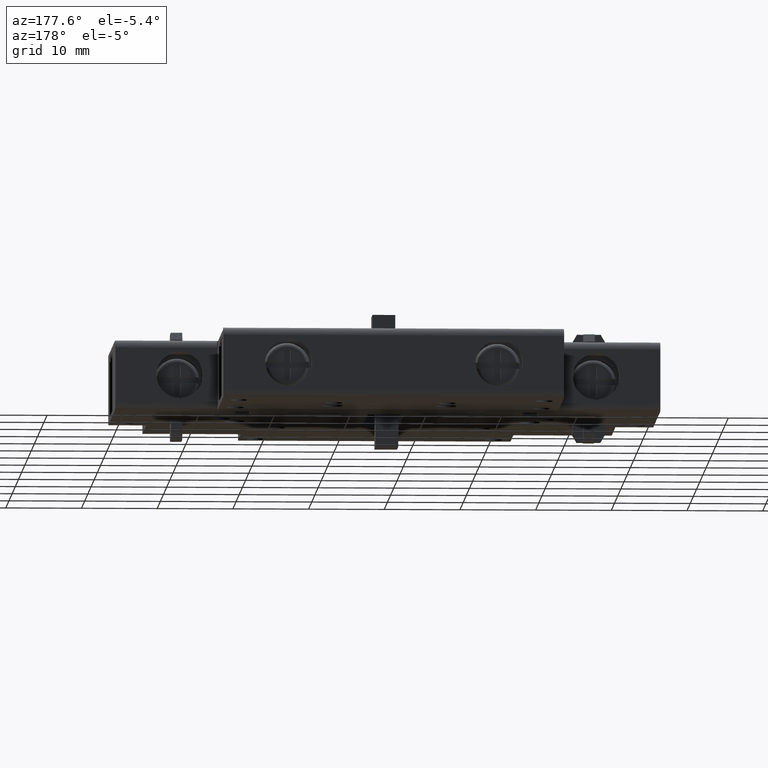
[diagram: clean part render]
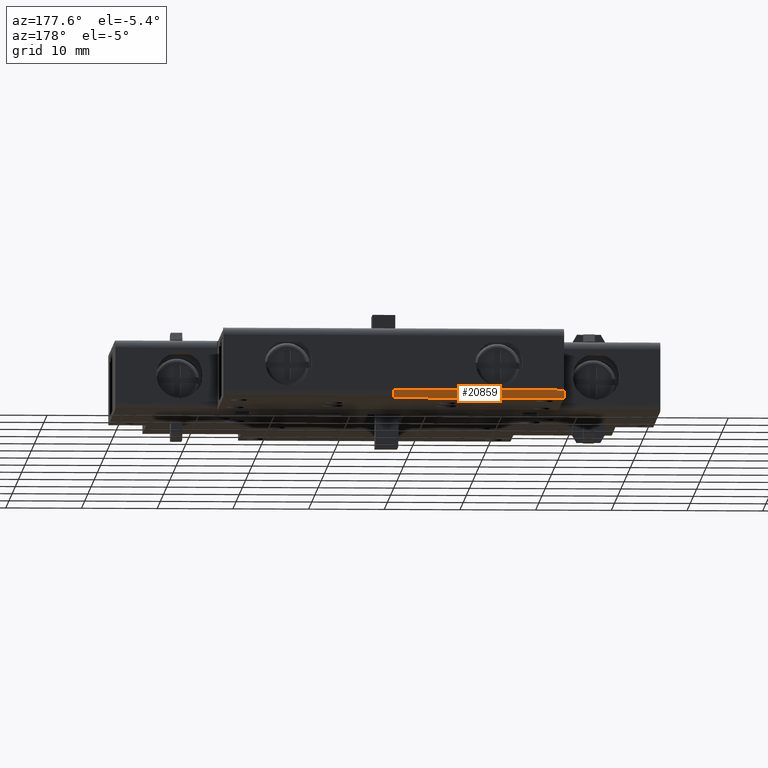
[diagram: same view with one face highlighted and labeled with its STEP entity id]
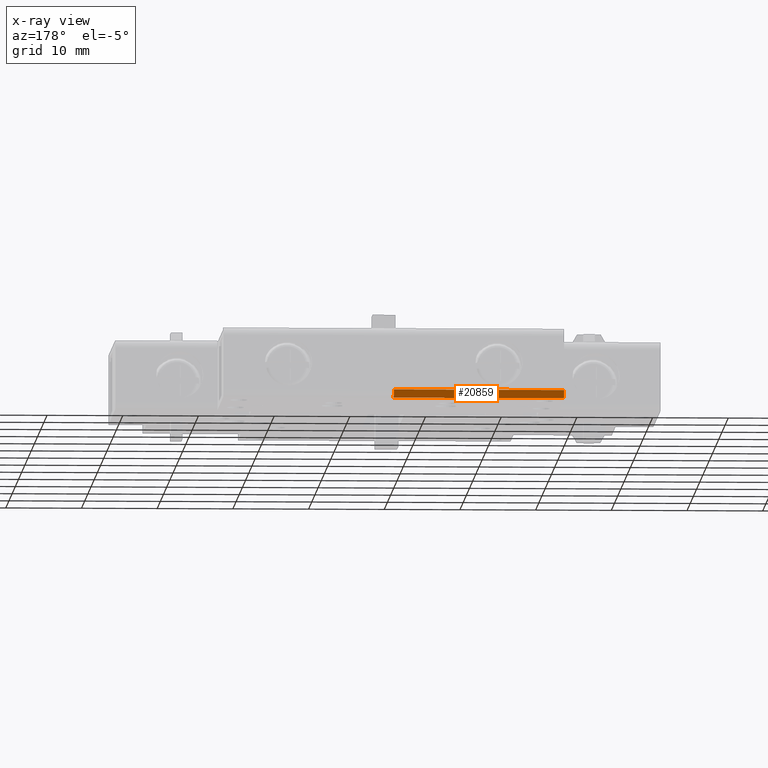
[diagram: x-ray of the same camera — body ghosted, the highlighted face saturated]
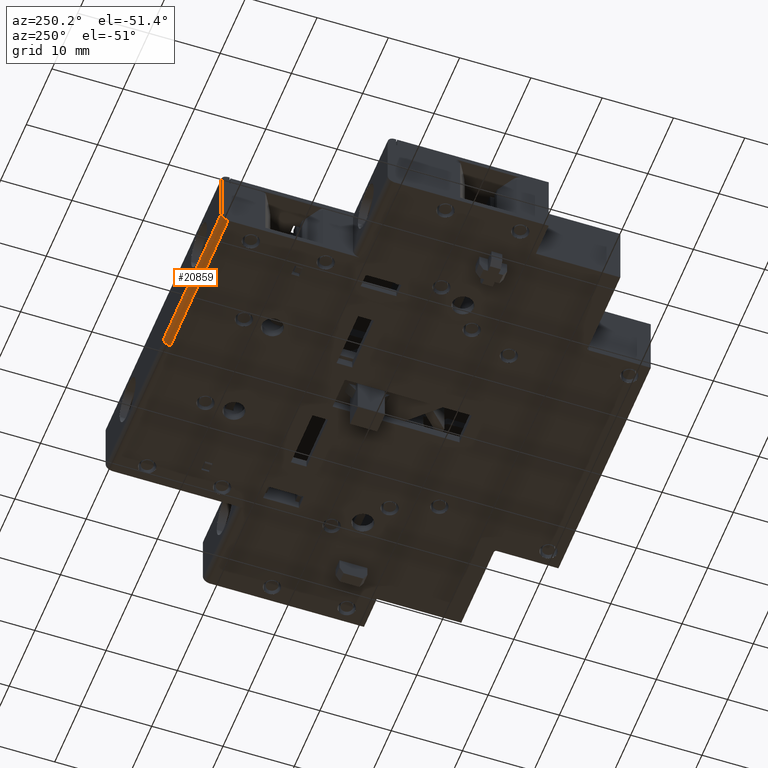
[diagram: same view with one face highlighted and labeled with its STEP entity id]
A machine part, auxiliary view. The second image highlights one B-rep face of the part: STEP entity #20859.
The next image is the same camera in x-ray: the body ghosted, the highlighted face saturated — about 0% of this face is hidden behind the body in this view.
A second angle (auxiliary view) of the same face is appended — the face is thin or edge-on in the first view.
In plain terms, the highlighted cylindrical surface (edge-blend (fillet) strip) has radius 1 mm, axis along (1, 0, 0).
Its self-contained STEP definition (entity closure, byte-faithful):
#9605=CARTESIAN_POINT('',(-9.618894532220E0,7.791970650536E1,5.599999999999E0));
#9606=DIRECTION('',(1.E0,0.E0,0.E0));
#9607=DIRECTION('',(0.E0,-1.520561454531E-12,-1.E0));
#9608=AXIS2_PLACEMENT_3D('',#9605,#9606,#9607);
#9624=DIRECTION('',(9.999999999999E-1,-3.905995419649E-7,3.658860868603E-12));
#9625=VECTOR('',#9624,2.25E1);
#9626=CARTESIAN_POINT('',(-9.618894532220E0,7.791969991399E1,4.600000000021E0));
#9627=LINE('',#9626,#9625);
#9628=CARTESIAN_POINT('',(1.288110546778E1,7.791970650536E1,5.599999999999E0));
#9629=DIRECTION('',(-1.E0,0.E0,0.E0));
#9630=DIRECTION('',(0.E0,9.999999999397E-1,1.098561599825E-5));
#9631=AXIS2_PLACEMENT_3D('',#9628,#9629,#9630);
#9675=DIRECTION('',(9.999999999999E-1,-3.651242271492E-12,3.580496842817E-7));
#9676=VECTOR('',#9675,2.25E1);
#9677=CARTESIAN_POINT('',(-9.618894532220E0,7.891970650534E1,5.600007323743E0));
#9678=LINE('',#9677,#9676);
#16509=CARTESIAN_POINT('',(-9.618894532220E0,7.791969991399E1,
4.600000000021E0));
#16511=VERTEX_POINT('',#16509);
#16522=CARTESIAN_POINT('',(1.288110546778E1,7.791969112550E1,4.600000000103E0));
#16523=VERTEX_POINT('',#16522);
#16572=CARTESIAN_POINT('',(-9.618894532220E0,7.891970650536E1,5.6E0));
#16573=VERTEX_POINT('',#16572);
#16594=CARTESIAN_POINT('',(1.288110546778E1,7.891970650530E1,5.600010985615E0));
#16595=VERTEX_POINT('',#16594);
#20846=CARTESIAN_POINT('',(-1.006889453222E1,7.791970650536E1,
5.599999999999E0));
#20847=DIRECTION('',(1.E0,0.E0,0.E0));
#20848=DIRECTION('',(0.E0,-3.428978074511E-1,-9.393727128490E-1));
#20849=AXIS2_PLACEMENT_3D('',#20846,#20847,#20848);
#20850=CYLINDRICAL_SURFACE('',#20849,9.999999999968E-1);
#20851=ORIENTED_EDGE('',*,*,#20686,.T.);
#20853=ORIENTED_EDGE('',*,*,#20852,.F.);
#20855=ORIENTED_EDGE('',*,*,#20854,.F.);
#20856=ORIENTED_EDGE('',*,*,#20818,.F.);
#20857=EDGE_LOOP('',(#20851,#20853,#20855,#20856));
#20858=FACE_OUTER_BOUND('',#20857,.F.);
#20859=ADVANCED_FACE('',(#20858),#20850,.T.);
#9609=CIRCLE('',#9608,9.999999999968E-1);
#9632=CIRCLE('',#9631,9.999999999968E-1);
#20686=EDGE_CURVE('',#16511,#16523,#9627,.T.);
#20818=EDGE_CURVE('',#16511,#16573,#9609,.T.);
#20852=EDGE_CURVE('',#16595,#16523,#9632,.T.);
#20854=EDGE_CURVE('',#16573,#16595,#9678,.T.);